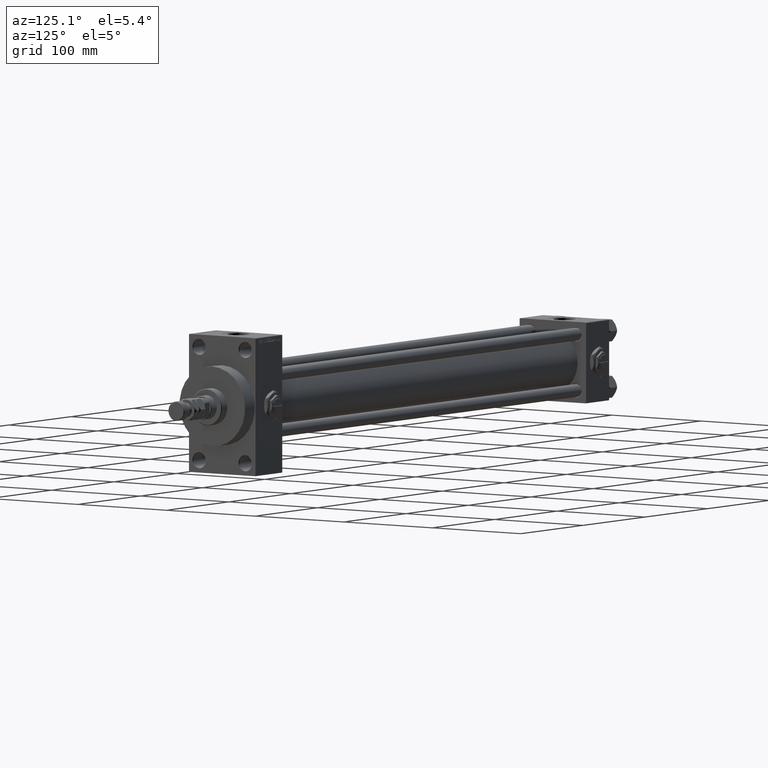
[diagram: clean part render]
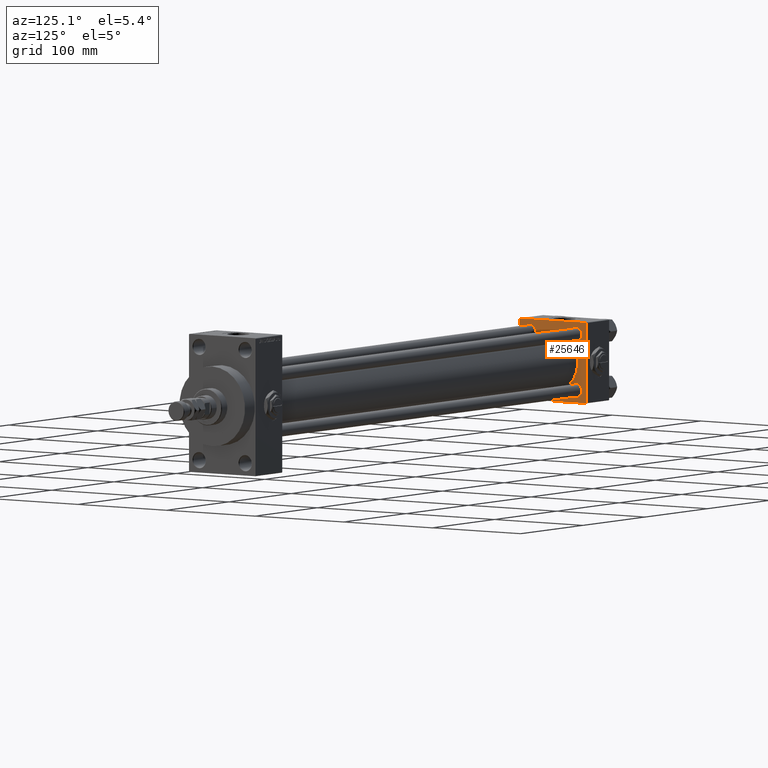
[diagram: same view with one face highlighted and labeled with its STEP entity id]
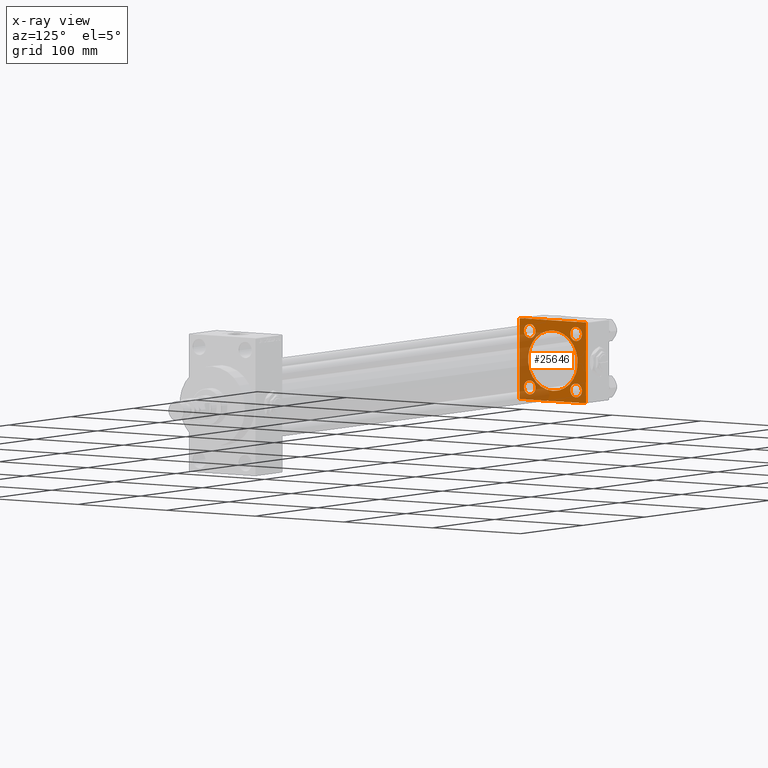
[diagram: x-ray of the same camera — body ghosted, the highlighted face saturated]
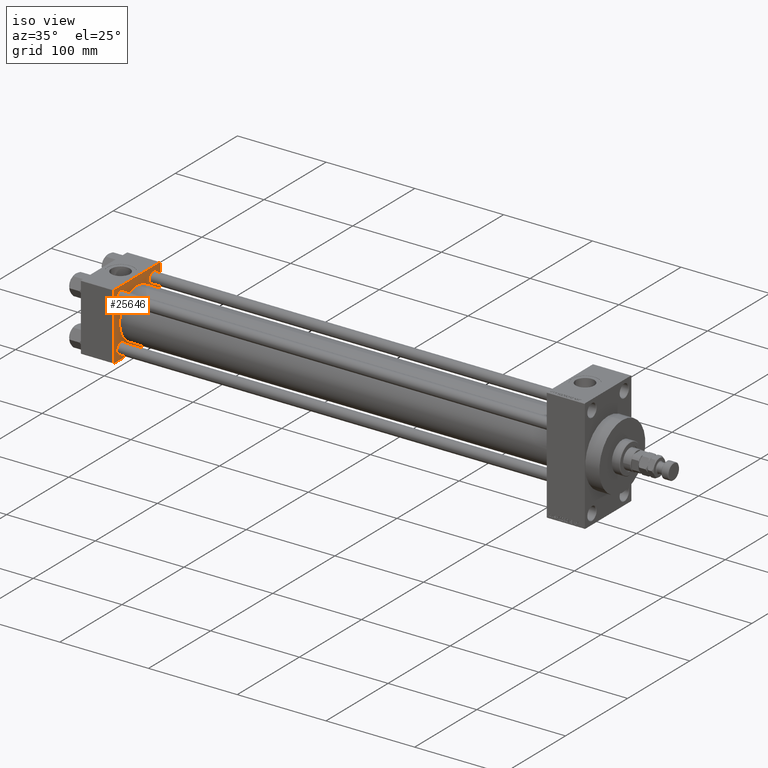
[diagram: same view with one face highlighted and labeled with its STEP entity id]
A machine part, auxiliary view. The second image highlights one B-rep face of the part: STEP entity #25646.
The next image is the same camera in x-ray: the body ghosted, the highlighted face saturated — about 34% of this face is hidden behind the body in this view.
A second angle (iso view) of the same face is appended — the face is thin or edge-on in the first view.
In plain terms, the highlighted planar face has unit normal (-1, 0, 0).
Its self-contained STEP definition (entity closure, byte-faithful):
#509 = LINE ( 'NONE', #23955, #13844 ) ;
#1210 = AXIS2_PLACEMENT_3D ( 'NONE', #34198, #30335, #10028 ) ;
#1796 = VERTEX_POINT ( 'NONE', #11324 ) ;
#2061 = DIRECTION ( 'NONE',  ( 0.000000000000000000, 0.000000000000000000, 1.000000000000000000 ) ) ;
#2211 = AXIS2_PLACEMENT_3D ( 'NONE', #31829, #39568, #8423 ) ;
#2409 = DIRECTION ( 'NONE',  ( 0.000000000000000000, 0.000000000000000000, 1.000000000000000000 ) ) ;
#2461 = DIRECTION ( 'NONE',  ( 0.000000000000000000, 0.000000000000000000, 1.000000000000000000 ) ) ;
#3007 = ORIENTED_EDGE ( 'NONE', *, *, #46331, .F. ) ;
#3384 = DIRECTION ( 'NONE',  ( -0.000000000000000000, 0.7071067811865474617, 0.7071067811865474617 ) ) ;
#4169 = VERTEX_POINT ( 'NONE', #14923 ) ;
#4683 = ORIENTED_EDGE ( 'NONE', *, *, #33592, .T. ) ;
#4831 = EDGE_CURVE ( 'NONE', #1796, #22588, #30855, .T. ) ;
#5497 = AXIS2_PLACEMENT_3D ( 'NONE', #44820, #40431, #17005 ) ;
#6007 = CARTESIAN_POINT ( 'NONE',  ( 36.99999999999997868, -2.602085213965210642E-15, 0.000000000000000000 ) ) ;
#6170 = FACE_OUTER_BOUND ( 'NONE', #19906, .T. ) ;
#6712 = LINE ( 'NONE', #22415, #8203 ) ;
#6748 = LINE ( 'NONE', #38652, #41428 ) ;
#7048 = ORIENTED_EDGE ( 'NONE', *, *, #11045, .F. ) ;
#7564 = ORIENTED_EDGE ( 'NONE', *, *, #30721, .T. ) ;
#7766 = AXIS2_PLACEMENT_3D ( 'NONE', #35341, #8562, #30963 ) ;
#7906 = AXIS2_PLACEMENT_3D ( 'NONE', #40835, #49332, #2461 ) ;
#8203 = VECTOR ( 'NONE', #38098, 1000.000000000000114 ) ;
#8423 = DIRECTION ( 'NONE',  ( 0.000000000000000000, 0.000000000000000000, 1.000000000000000000 ) ) ;
#8562 = DIRECTION ( 'NONE',  ( -1.000000000000000000, 0.000000000000000000, -0.000000000000000000 ) ) ;
#8827 = LINE ( 'NONE', #48985, #42492 ) ;
#9397 = DIRECTION ( 'NONE',  ( -1.000000000000000000, 0.000000000000000000, -0.000000000000000000 ) ) ;
#9656 = ORIENTED_EDGE ( 'NONE', *, *, #4831, .T. ) ;
#9932 = VERTEX_POINT ( 'NONE', #15869 ) ;
#9954 = CARTESIAN_POINT ( 'NONE',  ( 37.00000000000000000, 37.49999999999999289, 37.50000000000000000 ) ) ;
#10028 = DIRECTION ( 'NONE',  ( -0.000000000000000000, 0.000000000000000000, 1.000000000000000000 ) ) ;
#10290 = CARTESIAN_POINT ( 'NONE',  ( 37.00000000000000000, -26.14999999999999147, -26.15000000000000924 ) ) ;
#10765 = VERTEX_POINT ( 'NONE', #33914 ) ;
#10857 = EDGE_CURVE ( 'NONE', #50734, #10765, #45773, .T. ) ;
#10967 = DIRECTION ( 'NONE',  ( -0.000000000000000000, -0.7071067811865474617, -0.7071067811865474617 ) ) ;
#11045 = EDGE_CURVE ( 'NONE', #4169, #17651, #14311, .T. ) ;
#11252 = VECTOR ( 'NONE', #14817, 1000.000000000000000 ) ;
#11324 = CARTESIAN_POINT ( 'NONE',  ( 37.00000000000000000, 26.14999999999999858, 32.64999999999995595 ) ) ;
#11412 = CARTESIAN_POINT ( 'NONE',  ( 37.00000000000000000, -37.50000000000000000, -37.00000000000003553 ) ) ;
#12062 = AXIS2_PLACEMENT_3D ( 'NONE', #10290, #48935, #2061 ) ;
#12919 = CIRCLE ( 'NONE', #41696, 6.499999999999946709 ) ;
#13844 = VECTOR ( 'NONE', #47645, 1000.000000000000000 ) ;
#13859 = ORIENTED_EDGE ( 'NONE', *, *, #32267, .T. ) ;
#14021 = EDGE_LOOP ( 'NONE', ( #4683, #20553 ) ) ;
#14196 = CARTESIAN_POINT ( 'NONE',  ( 36.99999999999997868, -2.602085213965210642E-15, 0.000000000000000000 ) ) ;
#14311 = LINE ( 'NONE', #9954, #11252 ) ;
#14350 = CARTESIAN_POINT ( 'NONE',  ( 37.00000000000000000, -26.14999999999999147, 32.65000000000001990 ) ) ;
#14817 = DIRECTION ( 'NONE',  ( 0.000000000000000000, 0.000000000000000000, -1.000000000000000000 ) ) ;
#14923 = CARTESIAN_POINT ( 'NONE',  ( 37.00000000000000000, 37.49999999999999289, 37.00000000000000000 ) ) ;
#15089 = LINE ( 'NONE', #27427, #16830 ) ;
#15674 = EDGE_CURVE ( 'NONE', #34348, #24120, #28679, .T. ) ;
#15869 = CARTESIAN_POINT ( 'NONE',  ( 37.00000000000000000, 36.99999999999997868, -37.50000000000000000 ) ) ;
#16035 = VERTEX_POINT ( 'NONE', #35507 ) ;
#16830 = VECTOR ( 'NONE', #10967, 1000.000000000000114 ) ;
#16937 = EDGE_LOOP ( 'NONE', ( #19823, #3007 ) ) ;
#17005 = DIRECTION ( 'NONE',  ( 0.000000000000000000, 0.000000000000000000, 1.000000000000000000 ) ) ;
#17362 = CARTESIAN_POINT ( 'NONE',  ( 37.00000000000000000, 26.14999999999999858, -26.15000000000000213 ) ) ;
#17651 = VERTEX_POINT ( 'NONE', #28888 ) ;
#17751 = FACE_BOUND ( 'NONE', #20644, .T. ) ;
#18503 = FACE_BOUND ( 'NONE', #16937, .T. ) ;
#19427 = DIRECTION ( 'NONE',  ( 0.000000000000000000, 0.000000000000000000, 1.000000000000000000 ) ) ;
#19705 = AXIS2_PLACEMENT_3D ( 'NONE', #37484, #33094, #48842 ) ;
#19823 = ORIENTED_EDGE ( 'NONE', *, *, #33213, .F. ) ;
#19906 = EDGE_LOOP ( 'NONE', ( #29471, #28885, #7048, #37408, #27632, #42150, #23775, #13859 ) ) ;
#20180 = AXIS2_PLACEMENT_3D ( 'NONE', #34604, #43109, #19427 ) ;
#20238 = VERTEX_POINT ( 'NONE', #14350 ) ;
#20553 = ORIENTED_EDGE ( 'NONE', *, *, #50206, .T. ) ;
#20628 = VERTEX_POINT ( 'NONE', #44857 ) ;
#20644 = EDGE_LOOP ( 'NONE', ( #43436, #34155 ) ) ;
#20831 = VERTEX_POINT ( 'NONE', #35775 ) ;
#21124 = CARTESIAN_POINT ( 'NONE',  ( 37.00000000000000000, -37.50000000000000711, 36.99999999999999289 ) ) ;
#21293 = VECTOR ( 'NONE', #35629, 1000.000000000000000 ) ;
#21304 = VERTEX_POINT ( 'NONE', #50501 ) ;
#22371 = FACE_BOUND ( 'NONE', #14021, .T. ) ;
#22415 = CARTESIAN_POINT ( 'NONE',  ( 37.00000000000000000, 36.99999999999999289, 37.50000000000000000 ) ) ;
#22588 = VERTEX_POINT ( 'NONE', #39592 ) ;
#22837 = AXIS2_PLACEMENT_3D ( 'NONE', #14196, #29878, #41761 ) ;
#23038 = CARTESIAN_POINT ( 'NONE',  ( 36.99999999999997868, -2.602085213965210642E-15, 28.00000000000000000 ) ) ;
#23775 = ORIENTED_EDGE ( 'NONE', *, *, #15674, .T. ) ;
#23955 = CARTESIAN_POINT ( 'NONE',  ( 37.00000000000000000, 37.49999999999999289, -37.50000000000000000 ) ) ;
#24120 = VERTEX_POINT ( 'NONE', #11412 ) ;
#24818 = CARTESIAN_POINT ( 'NONE',  ( 37.00000000000000000, -37.50000000000000711, 37.49999999999999289 ) ) ;
#25189 = EDGE_CURVE ( 'NONE', #36966, #20238, #44752, .T. ) ;
#25215 = LINE ( 'NONE', #41173, #46659 ) ;
#25646 = ADVANCED_FACE ( 'NONE', ( #42188, #22371, #17751, #29819, #18503, #6170 ), #38313, .F. ) ;
#25837 = VERTEX_POINT ( 'NONE', #38763 ) ;
#25850 = EDGE_CURVE ( 'NONE', #21304, #34348, #15089, .T. ) ;
#26023 = CIRCLE ( 'NONE', #5497, 6.499999999999946709 ) ;
#26352 = EDGE_LOOP ( 'NONE', ( #7564, #30943 ) ) ;
#27427 = CARTESIAN_POINT ( 'NONE',  ( 37.00000000000000000, -37.50000000000000711, 36.99999999999999289 ) ) ;
#27632 = ORIENTED_EDGE ( 'NONE', *, *, #33971, .T. ) ;
#28679 = LINE ( 'NONE', #24818, #21293 ) ;
#28885 = ORIENTED_EDGE ( 'NONE', *, *, #45313, .T. ) ;
#28888 = CARTESIAN_POINT ( 'NONE',  ( 37.00000000000000000, 37.49999999999999289, -36.99999999999998579 ) ) ;
#29458 = DIRECTION ( 'NONE',  ( 0.000000000000000000, 0.000000000000000000, 1.000000000000000000 ) ) ;
#29471 = ORIENTED_EDGE ( 'NONE', *, *, #37659, .F. ) ;
#29670 = DIRECTION ( 'NONE',  ( 1.000000000000000000, -0.000000000000000000, 0.000000000000000000 ) ) ;
#29819 = FACE_BOUND ( 'NONE', #36694, .T. ) ;
#29878 = DIRECTION ( 'NONE',  ( 1.000000000000000000, -0.000000000000000000, 0.000000000000000000 ) ) ;
#30335 = DIRECTION ( 'NONE',  ( -1.000000000000000000, 0.000000000000000000, -0.000000000000000000 ) ) ;
#30548 = EDGE_CURVE ( 'NONE', #22588, #1796, #26023, .T. ) ;
#30721 = EDGE_CURVE ( 'NONE', #10765, #50734, #49901, .T. ) ;
#30855 = CIRCLE ( 'NONE', #20180, 6.499999999999946709 ) ;
#30943 = ORIENTED_EDGE ( 'NONE', *, *, #10857, .T. ) ;
#30963 = DIRECTION ( 'NONE',  ( 0.000000000000000000, 0.000000000000000000, 1.000000000000000000 ) ) ;
#31829 = CARTESIAN_POINT ( 'NONE',  ( 37.00000000000000000, -26.14999999999999147, -26.15000000000000924 ) ) ;
#32267 = EDGE_CURVE ( 'NONE', #24120, #25837, #25215, .T. ) ;
#33094 = DIRECTION ( 'NONE',  ( -1.000000000000000000, 0.000000000000000000, -0.000000000000000000 ) ) ;
#33213 = EDGE_CURVE ( 'NONE', #37057, #20628, #45775, .T. ) ;
#33592 = EDGE_CURVE ( 'NONE', #20831, #48076, #12919, .T. ) ;
#33840 = CARTESIAN_POINT ( 'NONE',  ( 37.00000000000000000, -26.14999999999999147, 19.65000000000000213 ) ) ;
#33914 = CARTESIAN_POINT ( 'NONE',  ( 37.00000000000000000, -26.14999999999999147, -32.65000000000001279 ) ) ;
#33971 = EDGE_CURVE ( 'NONE', #16035, #21304, #8827, .T. ) ;
#34057 = CARTESIAN_POINT ( 'NONE',  ( 37.00000000000000000, 26.14999999999999858, -19.65000000000005542 ) ) ;
#34155 = ORIENTED_EDGE ( 'NONE', *, *, #40705, .T. ) ;
#34198 = CARTESIAN_POINT ( 'NONE',  ( 37.00000000000000000, 0.000000000000000000, 0.000000000000000000 ) ) ;
#34348 = VERTEX_POINT ( 'NONE', #21124 ) ;
#34604 = CARTESIAN_POINT ( 'NONE',  ( 37.00000000000000000, 26.14999999999999858, 26.15000000000000213 ) ) ;
#35341 = CARTESIAN_POINT ( 'NONE',  ( 37.00000000000000000, -26.14999999999999147, 26.15000000000000924 ) ) ;
#35507 = CARTESIAN_POINT ( 'NONE',  ( 37.00000000000000000, 36.99999999999999289, 37.50000000000000000 ) ) ;
#35629 = DIRECTION ( 'NONE',  ( 0.000000000000000000, 9.251858538542971581E-17, -1.000000000000000000 ) ) ;
#35775 = CARTESIAN_POINT ( 'NONE',  ( 37.00000000000000000, 26.14999999999999858, -32.64999999999994884 ) ) ;
#36694 = EDGE_LOOP ( 'NONE', ( #44691, #9656 ) ) ;
#36966 = VERTEX_POINT ( 'NONE', #33840 ) ;
#37057 = VERTEX_POINT ( 'NONE', #23038 ) ;
#37408 = ORIENTED_EDGE ( 'NONE', *, *, #40061, .T. ) ;
#37484 = CARTESIAN_POINT ( 'NONE',  ( 37.00000000000000000, -26.14999999999999147, 26.15000000000000924 ) ) ;
#37659 = EDGE_CURVE ( 'NONE', #9932, #25837, #509, .T. ) ;
#38098 = DIRECTION ( 'NONE',  ( 0.000000000000000000, -0.7071067811865474617, 0.7071067811865474617 ) ) ;
#38313 = PLANE ( 'NONE',  #1210 ) ;
#38652 = CARTESIAN_POINT ( 'NONE',  ( 37.00000000000000000, 37.49999999999999289, -36.99999999999998579 ) ) ;
#38763 = CARTESIAN_POINT ( 'NONE',  ( 37.00000000000000000, -37.00000000000002132, -37.50000000000000711 ) ) ;
#39568 = DIRECTION ( 'NONE',  ( -1.000000000000000000, 0.000000000000000000, -0.000000000000000000 ) ) ;
#39592 = CARTESIAN_POINT ( 'NONE',  ( 37.00000000000000000, 26.14999999999999858, 19.65000000000005187 ) ) ;
#40061 = EDGE_CURVE ( 'NONE', #4169, #16035, #6712, .T. ) ;
#40431 = DIRECTION ( 'NONE',  ( -1.000000000000000000, 0.000000000000000000, -0.000000000000000000 ) ) ;
#40477 = DIRECTION ( 'NONE',  ( 0.000000000000000000, -1.000000000000000000, -9.251858538542971581E-17 ) ) ;
#40705 = EDGE_CURVE ( 'NONE', #20238, #36966, #41908, .T. ) ;
#40835 = CARTESIAN_POINT ( 'NONE',  ( 37.00000000000000000, 26.14999999999999858, -26.15000000000000213 ) ) ;
#41173 = CARTESIAN_POINT ( 'NONE',  ( 37.00000000000000000, -37.00000000000002132, -37.50000000000000711 ) ) ;
#41428 = VECTOR ( 'NONE', #3384, 1000.000000000000114 ) ;
#41696 = AXIS2_PLACEMENT_3D ( 'NONE', #17362, #9397, #29458 ) ;
#41761 = DIRECTION ( 'NONE',  ( 0.000000000000000000, 0.000000000000000000, 1.000000000000000000 ) ) ;
#41908 = CIRCLE ( 'NONE', #19705, 6.500000000000008882 ) ;
#42150 = ORIENTED_EDGE ( 'NONE', *, *, #25850, .T. ) ;
#42188 = FACE_BOUND ( 'NONE', #26352, .T. ) ;
#42492 = VECTOR ( 'NONE', #40477, 1000.000000000000000 ) ;
#43109 = DIRECTION ( 'NONE',  ( -1.000000000000000000, 0.000000000000000000, -0.000000000000000000 ) ) ;
#43436 = ORIENTED_EDGE ( 'NONE', *, *, #25189, .T. ) ;
#44691 = ORIENTED_EDGE ( 'NONE', *, *, #30548, .T. ) ;
#44752 = CIRCLE ( 'NONE', #7766, 6.500000000000008882 ) ;
#44779 = CIRCLE ( 'NONE', #48042, 28.00000000000000000 ) ;
#44820 = CARTESIAN_POINT ( 'NONE',  ( 37.00000000000000000, 26.14999999999999858, 26.15000000000000213 ) ) ;
#44857 = CARTESIAN_POINT ( 'NONE',  ( 36.99999999999997868, 8.269258236473776482E-16, -28.00000000000000000 ) ) ;
#45313 = EDGE_CURVE ( 'NONE', #9932, #17651, #6748, .T. ) ;
#45730 = CIRCLE ( 'NONE', #7906, 6.499999999999946709 ) ;
#45773 = CIRCLE ( 'NONE', #2211, 6.500000000000002665 ) ;
#45775 = CIRCLE ( 'NONE', #22837, 28.00000000000000000 ) ;
#46331 = EDGE_CURVE ( 'NONE', #20628, #37057, #44779, .T. ) ;
#46659 = VECTOR ( 'NONE', #48139, 1000.000000000000000 ) ;
#47645 = DIRECTION ( 'NONE',  ( 0.000000000000000000, -1.000000000000000000, -9.251858538542972814E-17 ) ) ;
#48042 = AXIS2_PLACEMENT_3D ( 'NONE', #6007, #29670, #2409 ) ;
#48076 = VERTEX_POINT ( 'NONE', #34057 ) ;
#48139 = DIRECTION ( 'NONE',  ( 0.000000000000000000, 0.7071067811865524577, -0.7071067811865426878 ) ) ;
#48842 = DIRECTION ( 'NONE',  ( 0.000000000000000000, 0.000000000000000000, 1.000000000000000000 ) ) ;
#48935 = DIRECTION ( 'NONE',  ( -1.000000000000000000, 0.000000000000000000, -0.000000000000000000 ) ) ;
#48985 = CARTESIAN_POINT ( 'NONE',  ( 37.00000000000000000, 37.49999999999999289, 37.50000000000000000 ) ) ;
#49276 = CARTESIAN_POINT ( 'NONE',  ( 37.00000000000000000, -26.14999999999999147, -19.65000000000000924 ) ) ;
#49332 = DIRECTION ( 'NONE',  ( -1.000000000000000000, 0.000000000000000000, -0.000000000000000000 ) ) ;
#49901 = CIRCLE ( 'NONE', #12062, 6.500000000000002665 ) ;
#50206 = EDGE_CURVE ( 'NONE', #48076, #20831, #45730, .T. ) ;
#50501 = CARTESIAN_POINT ( 'NONE',  ( 37.00000000000000000, -37.00000000000000711, 37.49999999999999289 ) ) ;
#50734 = VERTEX_POINT ( 'NONE', #49276 ) ;